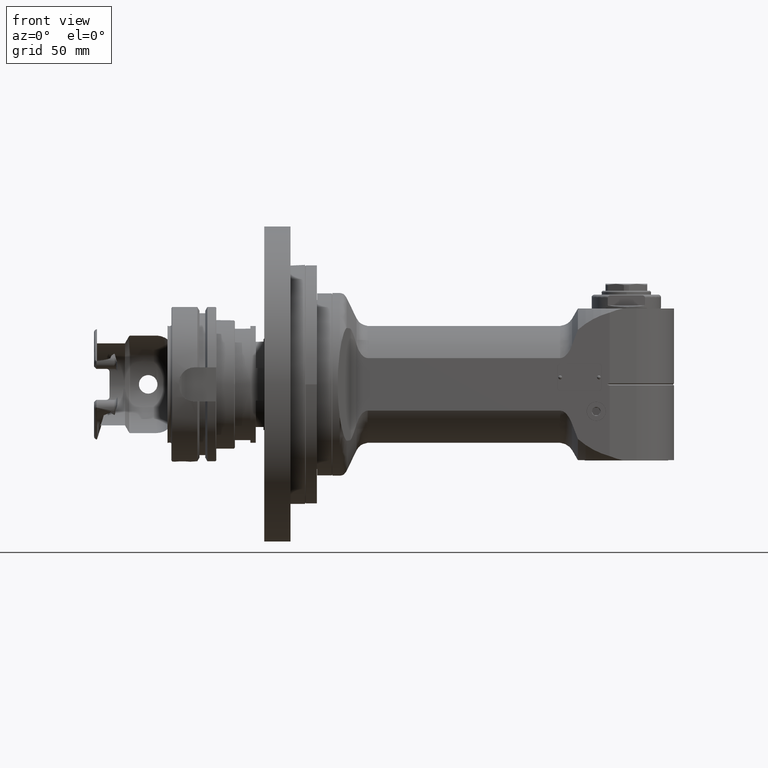
[diagram: clean part render]
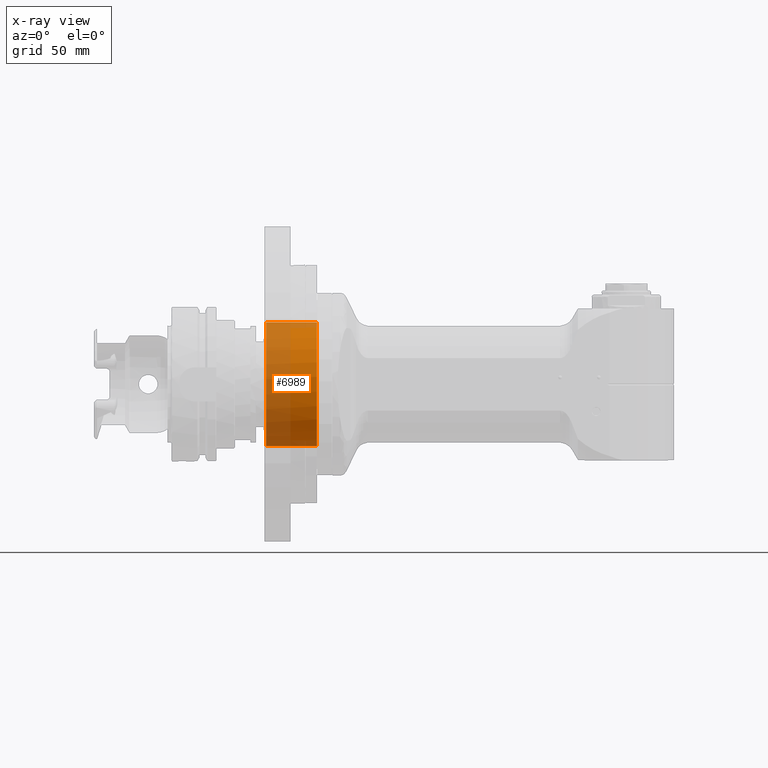
[diagram: x-ray — body ghosted, one internal face saturated and labeled with its STEP entity id]
A machine part, front view, then the same camera in x-ray: the body is ghosted and one INTERNAL B-rep face — a face not visible from any outside direction — is saturated and labeled: STEP entity #6989.
In plain terms, the highlighted cylindrical surface (bore or boss wall) has radius 40 mm, axis along (-1, 0, 0).
Its self-contained STEP definition (entity closure, byte-faithful):
#210=CYLINDRICAL_SURFACE('',#7736,40.);
#614=LINE('',#12647,#1028);
#1028=VECTOR('',#9305,40.);
#1652=FACE_OUTER_BOUND('',#2104,.T.);
#2104=EDGE_LOOP('',(#5821,#5822,#5823,#5824,#5825));
#2684=CIRCLE('',#7735,40.);
#2685=CIRCLE('',#7737,40.);
#2686=CIRCLE('',#7738,40.);
#3264=VERTEX_POINT('',#12640);
#3265=VERTEX_POINT('',#12643);
#3266=VERTEX_POINT('',#12644);
#4167=EDGE_CURVE('',#3264,#3264,#2684,.T.);
#4168=EDGE_CURVE('',#3265,#3266,#2685,.T.);
#4169=EDGE_CURVE('',#3266,#3265,#2686,.T.);
#4170=EDGE_CURVE('',#3266,#3264,#614,.T.);
#5821=ORIENTED_EDGE('',*,*,#4168,.F.);
#5822=ORIENTED_EDGE('',*,*,#4169,.F.);
#5823=ORIENTED_EDGE('',*,*,#4170,.T.);
#5824=ORIENTED_EDGE('',*,*,#4167,.F.);
#5825=ORIENTED_EDGE('',*,*,#4170,.F.);
#6989=ADVANCED_FACE('',(#1652),#210,.T.);
#7735=AXIS2_PLACEMENT_3D('',#12641,#9297,#9298);
#7736=AXIS2_PLACEMENT_3D('',#12642,#9299,#9300);
#7737=AXIS2_PLACEMENT_3D('',#12645,#9301,#9302);
#7738=AXIS2_PLACEMENT_3D('',#12646,#9303,#9304);
#9297=DIRECTION('center_axis',(1.,0.,0.));
#9298=DIRECTION('ref_axis',(0.,1.,0.));
#9299=DIRECTION('center_axis',(-1.,0.,0.));
#9300=DIRECTION('ref_axis',(0.,1.,0.));
#9301=DIRECTION('center_axis',(-1.,0.,0.));
#9302=DIRECTION('ref_axis',(0.,-1.,0.));
#9303=DIRECTION('center_axis',(-1.,0.,0.));
#9304=DIRECTION('ref_axis',(0.,-1.,0.));
#9305=DIRECTION('',(1.,0.,0.));
#12640=CARTESIAN_POINT('',(5.5,-40.,4.89858719658941E-15));
#12641=CARTESIAN_POINT('Origin',(5.5,0.,0.));
#12642=CARTESIAN_POINT('Origin',(-11.5,0.,0.));
#12643=CARTESIAN_POINT('',(-27.26794919243,0.,40.));
#12644=CARTESIAN_POINT('',(-27.26794919243,-40.,4.89858719658941E-15));
#12645=CARTESIAN_POINT('Origin',(-27.26794919243,0.,0.));
#12646=CARTESIAN_POINT('Origin',(-27.26794919243,0.,0.));
#12647=CARTESIAN_POINT('',(-11.5,-40.,4.89858719658941E-15));